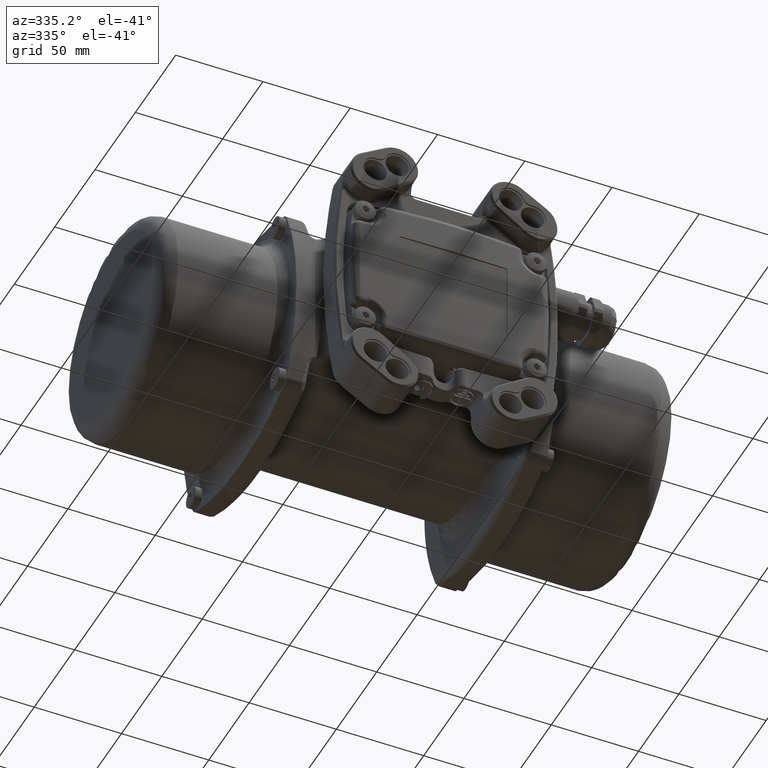
[diagram: clean part render]
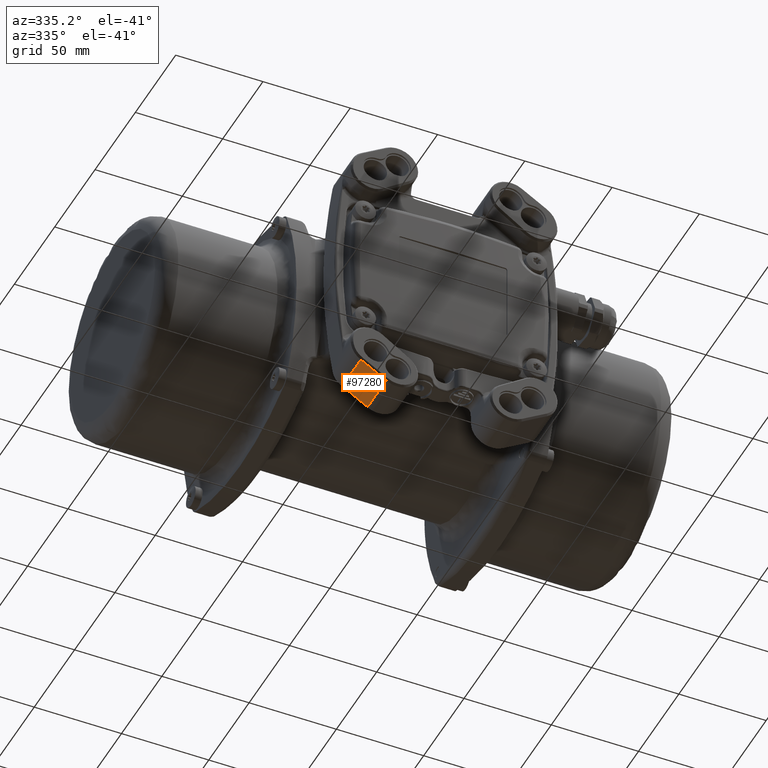
[diagram: same view with one face highlighted and labeled with its STEP entity id]
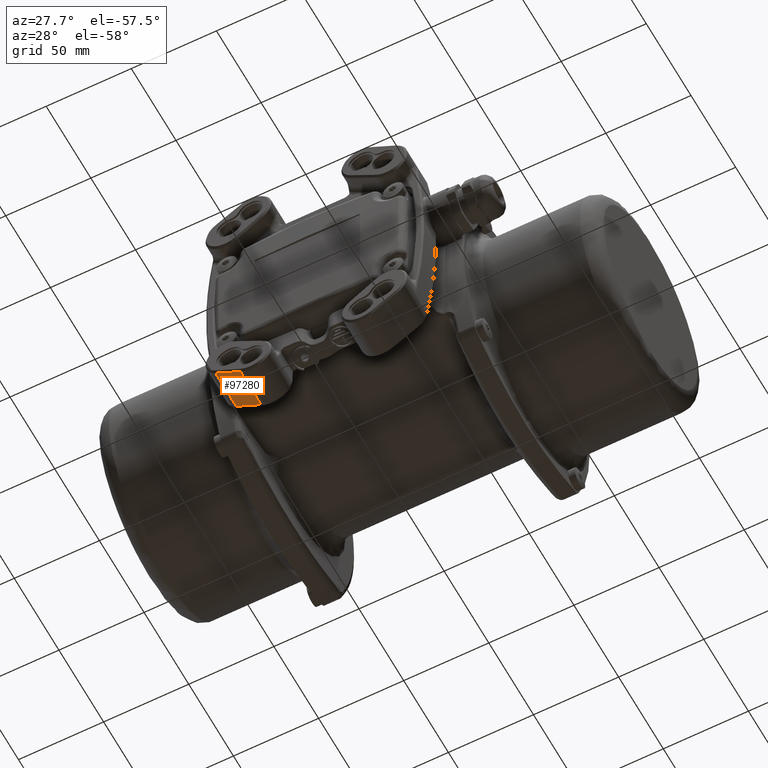
[diagram: same view with one face highlighted and labeled with its STEP entity id]
A machine part, auxiliary view. The second image highlights one B-rep face of the part: STEP entity #97280.
A second angle (auxiliary view) of the same face is appended — the face is thin or edge-on in the first view.
In plain terms, the highlighted planar face has unit normal (0.5274, -0, 0.8496).
Its self-contained STEP definition (entity closure, byte-faithful):
#655 = VERTEX_POINT ( 'NONE', #132998 ) ;
#11594 = DIRECTION ( 'NONE',  ( 0.8496401661981171100, 1.034738769983900000E-016, -0.5273628617781460600 ) ) ;
#17842 = CARTESIAN_POINT ( 'NONE',  ( -38.82835434133780000, -81.00000000000000000, -80.19568199437750900 ) ) ;
#18474 = FACE_OUTER_BOUND ( 'NONE', #139270, .T. ) ;
#21588 = CARTESIAN_POINT ( 'NONE',  ( -38.82835434133780000, -80.00000000000000000, -80.19568199437750900 ) ) ;
#26242 = EDGE_CURVE ( 'NONE', #64842, #111735, #53460, .T. ) ;
#28198 = ORIENTED_EDGE ( 'NONE', *, *, #129196, .F. ) ;
#29620 = CARTESIAN_POINT ( 'NONE',  ( -38.82835434133780000, -80.00000000000000000, -80.19568199437750900 ) ) ;
#29680 = DIRECTION ( 'NONE',  ( 5.773171773799138800E-049, -1.000000000000000000, -2.042470651928919900E-017 ) ) ;
#41510 = VECTOR ( 'NONE', #11594, 1000.000000000000100 ) ;
#45157 = ORIENTED_EDGE ( 'NONE', *, *, #49686, .F. ) ;
#47795 = DIRECTION ( 'NONE',  ( -0.8496401661981171100, -1.034738769983900000E-016, 0.5273628617781460600 ) ) ;
#49686 = EDGE_CURVE ( 'NONE', #655, #64842, #102219, .T. ) ;
#52436 = CARTESIAN_POINT ( 'NONE',  ( -53.32835434133780000, -80.00000000000000000, -71.19568199437739500 ) ) ;
#53460 = LINE ( 'NONE', #21588, #109066 ) ;
#55873 = CARTESIAN_POINT ( 'NONE',  ( -107.9927320237414000, -81.00000000000000000, -37.26606826047144900 ) ) ;
#64842 = VERTEX_POINT ( 'NONE', #132371 ) ;
#64864 = VERTEX_POINT ( 'NONE', #121185 ) ;
#64954 = VECTOR ( 'NONE', #29680, 1000.000000000000000 ) ;
#68696 = ORIENTED_EDGE ( 'NONE', *, *, #26242, .F. ) ;
#72788 = CARTESIAN_POINT ( 'NONE',  ( -38.82835434133780000, -104.0000000000000000, -80.19568199437750900 ) ) ;
#81694 = DIRECTION ( 'NONE',  ( 0.5273628617781460600, -8.815249499204300100E-018, 0.8496401661981171100 ) ) ;
#86736 = VECTOR ( 'NONE', #114598, 1000.000000000000100 ) ;
#88579 = LINE ( 'NONE', #52436, #64954 ) ;
#89024 = EDGE_CURVE ( 'NONE', #111735, #64864, #116933, .T. ) ;
#90735 = PLANE ( 'NONE',  #132218 ) ;
#93090 = ORIENTED_EDGE ( 'NONE', *, *, #89024, .F. ) ;
#97280 = ADVANCED_FACE ( 'NONE', ( #18474 ), #90735, .F. ) ;
#100817 = DIRECTION ( 'NONE',  ( -5.773171773799138800E-049, 1.000000000000000000, 2.042470651928919900E-017 ) ) ;
#102219 = LINE ( 'NONE', #72788, #41510 ) ;
#109066 = VECTOR ( 'NONE', #100817, 1000.000000000000000 ) ;
#111735 = VERTEX_POINT ( 'NONE', #17842 ) ;
#114598 = DIRECTION ( 'NONE',  ( -0.8496401661981171100, -1.034738769983900000E-016, 0.5273628617781460600 ) ) ;
#116933 = LINE ( 'NONE', #55873, #86736 ) ;
#121185 = CARTESIAN_POINT ( 'NONE',  ( -53.32835434133769300, -81.00000000000000000, -71.19568199437739500 ) ) ;
#129196 = EDGE_CURVE ( 'NONE', #64864, #655, #88579, .T. ) ;
#132218 = AXIS2_PLACEMENT_3D ( 'NONE', #29620, #81694, #47795 ) ;
#132371 = CARTESIAN_POINT ( 'NONE',  ( -38.82835434133780000, -104.0000000000000000, -80.19568199437750900 ) ) ;
#132998 = CARTESIAN_POINT ( 'NONE',  ( -53.32835434133780000, -104.0000000000000000, -71.19568199437739500 ) ) ;
#139270 = EDGE_LOOP ( 'NONE', ( #93090, #68696, #45157, #28198 ) ) ;